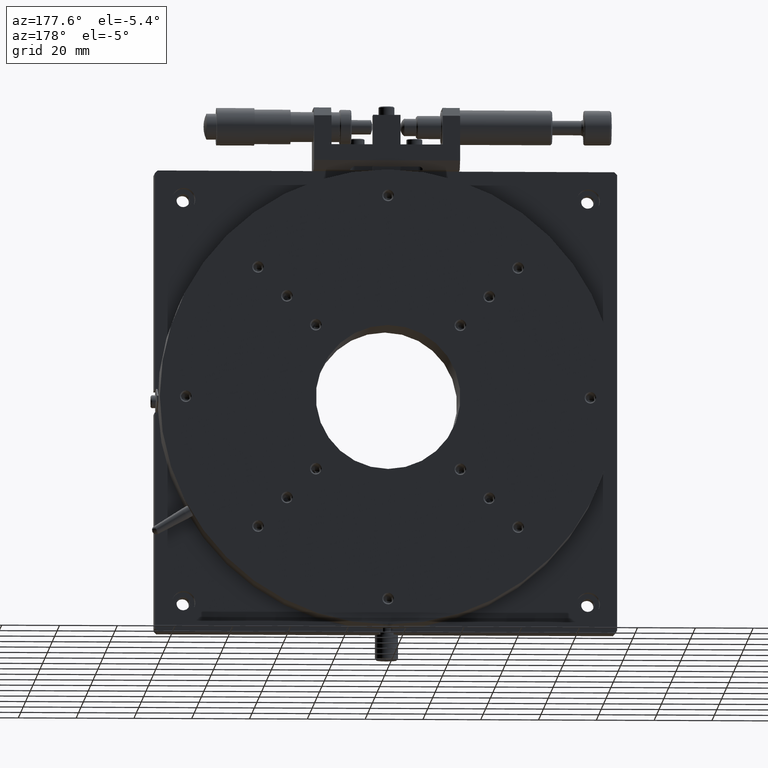
[diagram: clean part render]
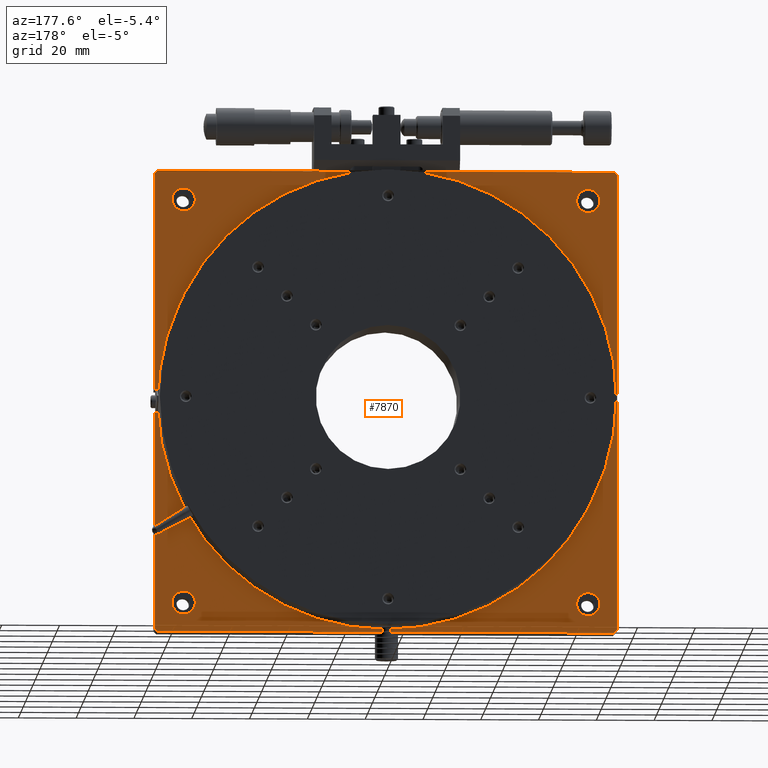
[diagram: same view with one face highlighted and labeled with its STEP entity id]
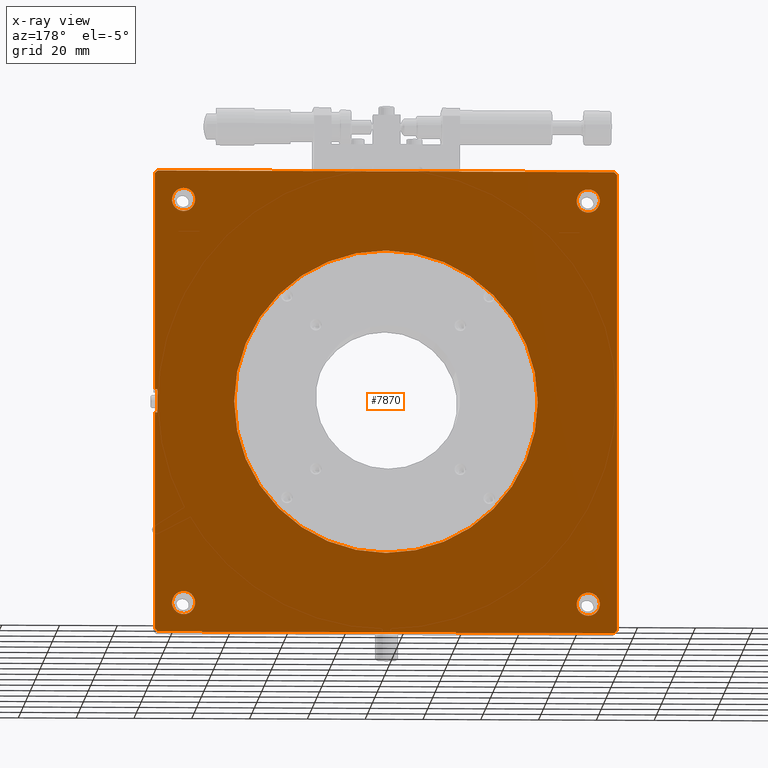
[diagram: x-ray of the same camera — body ghosted, the highlighted face saturated]
A machine part, auxiliary view. The second image highlights one B-rep face of the part: STEP entity #7870.
The next image is the same camera in x-ray: the body ghosted, the highlighted face saturated — about 0% of this face is hidden behind the body in this view.
In plain terms, the highlighted planar face has unit normal (0, 1, 0).
Its self-contained STEP definition (entity closure, byte-faithful):
#3 = AXIS2_PLACEMENT_3D ( 'NONE', #6759, #6772, #6773 ) ;
#17 = AXIS2_PLACEMENT_3D ( 'NONE', #6589, #6593, #6594 ) ;
#24 = AXIS2_PLACEMENT_3D ( 'NONE', #6735, #6763, #6776 ) ;
#29 = AXIS2_PLACEMENT_3D ( 'NONE', #6352, #6378, #6360 ) ;
#31 = AXIS2_PLACEMENT_3D ( 'NONE', #6734, #6765, #6774 ) ;
#36 = AXIS2_PLACEMENT_3D ( 'NONE', #6771, #6777, #6762 ) ;
#115 = EDGE_CURVE ( 'NONE', #9205, #9181, #5553, .T. ) ;
#116 = EDGE_CURVE ( 'NONE', #244, #9192, #5572, .T. ) ;
#136 = EDGE_CURVE ( 'NONE', #9194, #9211, #5527, .T. ) ;
#170 = EDGE_CURVE ( 'NONE', #9183, #246, #5602, .T. ) ;
#189 = VERTEX_POINT ( 'NONE', #6417 ) ;
#244 = VERTEX_POINT ( 'NONE', #6431 ) ;
#246 = VERTEX_POINT ( 'NONE', #6435 ) ;
#316 = CARTESIAN_POINT ( 'NONE',  ( 160.0000000000000000, 12.00000000000000000, 76.00000000000000000 ) ) ;
#321 = DIRECTION ( 'NONE',  ( -0.0000000000000000000, -0.0000000000000000000, 1.000000000000000000 ) ) ;
#336 = DIRECTION ( 'NONE',  ( 1.000000000000000000, -0.0000000000000000000, 0.0000000000000000000 ) ) ;
#339 = DIRECTION ( 'NONE',  ( -1.000000000000000000, -0.0000000000000000000, 0.0000000000000000000 ) ) ;
#344 = CARTESIAN_POINT ( 'NONE',  ( 0.0000000000000000000, 12.00000000000000000, 160.0000000000000000 ) ) ;
#345 = CARTESIAN_POINT ( 'NONE',  ( 1.000000000000000000, 12.00000000000000000, 160.0000000000000000 ) ) ;
#350 = DIRECTION ( 'NONE',  ( 1.000000000000000000, 0.0000000000000000000, -0.0000000000000000000 ) ) ;
#351 = CARTESIAN_POINT ( 'NONE',  ( 0.0000000000000000000, 12.00000000000000000, 1.000000000000000000 ) ) ;
#363 = CARTESIAN_POINT ( 'NONE',  ( 159.0000000000000000, 12.00000000000000000, 0.0000000000000000000 ) ) ;
#368 = CARTESIAN_POINT ( 'NONE',  ( 1.000000000000000000, 12.00000000000000000, 160.0000000000000000 ) ) ;
#379 = DIRECTION ( 'NONE',  ( 1.000000000000000000, -0.0000000000000000000, 0.0000000000000000000 ) ) ;
#387 = DIRECTION ( 'NONE',  ( -1.000000000000000000, -0.0000000000000000000, 0.0000000000000000000 ) ) ;
#405 = CARTESIAN_POINT ( 'NONE',  ( 159.0999999999999900, 12.00000000000000000, 0.0000000000000000000 ) ) ;
#412 = CARTESIAN_POINT ( 'NONE',  ( 159.0000000000000000, 12.00000000000000000, 160.0000000000000000 ) ) ;
#413 = CARTESIAN_POINT ( 'NONE',  ( 1.000000000000000000, 12.00000000000000000, 0.0000000000000000000 ) ) ;
#435 = DIRECTION ( 'NONE',  ( -0.0000000000000000000, 0.0000000000000000000, -1.000000000000000000 ) ) ;
#436 = DIRECTION ( 'NONE',  ( -0.7071067811865474600, 0.0000000000000000000, 0.7071067811865474600 ) ) ;
#437 = CARTESIAN_POINT ( 'NONE',  ( 10.00000000000000000, 12.00000000000000000, 6.000000000000000000 ) ) ;
#443 = CARTESIAN_POINT ( 'NONE',  ( 10.00000000000000000, 12.00000000000000000, 154.0000000000000000 ) ) ;
#447 = DIRECTION ( 'NONE',  ( 0.7071067811865474600, 0.0000000000000000000, -0.7071067811865474600 ) ) ;
#450 = CARTESIAN_POINT ( 'NONE',  ( 10.00000000000000000, 12.00000000000000000, 14.00000000000000000 ) ) ;
#481 = CARTESIAN_POINT ( 'NONE',  ( 150.0000000000000000, 12.00000000000000000, 6.000000000000000000 ) ) ;
#485 = CARTESIAN_POINT ( 'NONE',  ( 150.0000000000000000, 12.00000000000000000, 146.0000000000000000 ) ) ;
#486 = CARTESIAN_POINT ( 'NONE',  ( 150.0000000000000000, 12.00000000000000000, 154.0000000000000000 ) ) ;
#493 = CARTESIAN_POINT ( 'NONE',  ( 80.00000000000000000, 12.00000000000000000, 132.5000000000000000 ) ) ;
#500 = CARTESIAN_POINT ( 'NONE',  ( 80.00000000000000000, 12.00000000000000000, 27.50000000000000400 ) ) ;
#502 = DIRECTION ( 'NONE',  ( -0.0000000000000000000, -1.000000000000000000, -0.0000000000000000000 ) ) ;
#504 = DIRECTION ( 'NONE',  ( 0.0000000000000000000, 0.0000000000000000000, 1.000000000000000000 ) ) ;
#518 = CARTESIAN_POINT ( 'NONE',  ( 150.0000000000000000, 12.00000000000000000, 150.0000000000000000 ) ) ;
#2376 = CARTESIAN_POINT ( 'NONE',  ( 0.0000000000000000000, 12.00000000000000000, 76.00000000000000000 ) ) ;
#2956 = VERTEX_POINT ( 'NONE', #6477 ) ;
#2957 = VERTEX_POINT ( 'NONE', #6489 ) ;
#2958 = VERTEX_POINT ( 'NONE', #6483 ) ;
#2961 = VERTEX_POINT ( 'NONE', #6479 ) ;
#2976 = VERTEX_POINT ( 'NONE', #6509 ) ;
#2982 = VERTEX_POINT ( 'NONE', #6500 ) ;
#2986 = VERTEX_POINT ( 'NONE', #6480 ) ;
#2988 = VERTEX_POINT ( 'NONE', #6508 ) ;
#2991 = VERTEX_POINT ( 'NONE', #6484 ) ;
#3047 = VERTEX_POINT ( 'NONE', #6457 ) ;
#3119 = ORIENTED_EDGE ( 'NONE', *, *, #4078, .T. ) ;
#3123 = ORIENTED_EDGE ( 'NONE', *, *, #4012, .T. ) ;
#3127 = ORIENTED_EDGE ( 'NONE', *, *, #8167, .T. ) ;
#3128 = ORIENTED_EDGE ( 'NONE', *, *, #4076, .T. ) ;
#3130 = ORIENTED_EDGE ( 'NONE', *, *, #8192, .T. ) ;
#3132 = ORIENTED_EDGE ( 'NONE', *, *, #8220, .T. ) ;
#3133 = ORIENTED_EDGE ( 'NONE', *, *, #8213, .T. ) ;
#3137 = ORIENTED_EDGE ( 'NONE', *, *, #4077, .T. ) ;
#3138 = ORIENTED_EDGE ( 'NONE', *, *, #4028, .T. ) ;
#3143 = ORIENTED_EDGE ( 'NONE', *, *, #170, .T. ) ;
#3144 = ORIENTED_EDGE ( 'NONE', *, *, #4073, .T. ) ;
#3146 = ORIENTED_EDGE ( 'NONE', *, *, #4039, .F. ) ;
#3149 = ORIENTED_EDGE ( 'NONE', *, *, #8186, .F. ) ;
#3150 = ORIENTED_EDGE ( 'NONE', *, *, #116, .T. ) ;
#3152 = ORIENTED_EDGE ( 'NONE', *, *, #115, .T. ) ;
#3158 = ORIENTED_EDGE ( 'NONE', *, *, #4044, .T. ) ;
#3161 = ORIENTED_EDGE ( 'NONE', *, *, #4008, .T. ) ;
#3163 = ORIENTED_EDGE ( 'NONE', *, *, #8168, .T. ) ;
#3168 = ORIENTED_EDGE ( 'NONE', *, *, #8182, .T. ) ;
#3174 = ORIENTED_EDGE ( 'NONE', *, *, #8218, .T. ) ;
#3182 = ORIENTED_EDGE ( 'NONE', *, *, #4041, .T. ) ;
#3184 = ORIENTED_EDGE ( 'NONE', *, *, #136, .T. ) ;
#3186 = ORIENTED_EDGE ( 'NONE', *, *, #8181, .T. ) ;
#3187 = ORIENTED_EDGE ( 'NONE', *, *, #8200, .T. ) ;
#3189 = ORIENTED_EDGE ( 'NONE', *, *, #9247, .T. ) ;
#3193 = ORIENTED_EDGE ( 'NONE', *, *, #4027, .T. ) ;
#3561 = CARTESIAN_POINT ( 'NONE',  ( 54.75000000000000000, 12.00000000000000000, 160.0000000000000000 ) ) ;
#3626 = CARTESIAN_POINT ( 'NONE',  ( 159.5999999999999900, 12.00000000000000000, 84.00000000000000000 ) ) ;
#3648 = CARTESIAN_POINT ( 'NONE',  ( 159.5999999999999900, 12.00000000000000000, 76.00000000000000000 ) ) ;
#3651 = CARTESIAN_POINT ( 'NONE',  ( 105.2500000000000000, 12.00000000000000000, 160.0000000000000000 ) ) ;
#4008 = EDGE_CURVE ( 'NONE', #2988, #2976, #5668, .T. ) ;
#4012 = EDGE_CURVE ( 'NONE', #9181, #9205, #5637, .T. ) ;
#4027 = EDGE_CURVE ( 'NONE', #2961, #3047, #5669, .T. ) ;
#4028 = EDGE_CURVE ( 'NONE', #2982, #2986, #5666, .T. ) ;
#4039 = EDGE_CURVE ( 'NONE', #7703, #2976, #5677, .T. ) ;
#4041 = EDGE_CURVE ( 'NONE', #2957, #2961, #5645, .T. ) ;
#4044 = EDGE_CURVE ( 'NONE', #7703, #189, #5730, .T. ) ;
#4073 = EDGE_CURVE ( 'NONE', #9192, #244, #5714, .T. ) ;
#4076 = EDGE_CURVE ( 'NONE', #9211, #9194, #5768, .T. ) ;
#4077 = EDGE_CURVE ( 'NONE', #246, #9183, #5764, .T. ) ;
#4078 = EDGE_CURVE ( 'NONE', #9208, #9191, #5786, .T. ) ;
#4180 = EDGE_LOOP ( 'NONE', ( #3168, #3174, #3161, #3146, #3158, #3133, #3127, #3149, #3182, #3193, #3130, #3132, #3163, #3138, #3187, #3186 ) ) ;
#4186 = EDGE_LOOP ( 'NONE', ( #3150, #3144 ) ) ;
#4189 = EDGE_LOOP ( 'NONE', ( #3143, #3137 ) ) ;
#4205 = EDGE_LOOP ( 'NONE', ( #3184, #3128 ) ) ;
#4268 = AXIS2_PLACEMENT_3D ( 'NONE', #518, #502, #504 ) ;
#4916 = VERTEX_POINT ( 'NONE', #6131 ) ;
#5527 = CIRCLE ( 'NONE', #9232, 52.50000000000000000 ) ;
#5553 = CIRCLE ( 'NONE', #9250, 4.000000000000000000 ) ;
#5572 = CIRCLE ( 'NONE', #9277, 4.000000000000000000 ) ;
#5602 = CIRCLE ( 'NONE', #29, 4.000000000000003600 ) ;
#5637 = CIRCLE ( 'NONE', #17, 4.000000000000000000 ) ;
#5645 = LINE ( 'NONE', #6667, #5651 ) ;
#5647 = VECTOR ( 'NONE', #6677, 1000.000000000000000 ) ;
#5651 = VECTOR ( 'NONE', #6673, 1000.000000000000000 ) ;
#5652 = VECTOR ( 'NONE', #6620, 999.9999999999998900 ) ;
#5666 = LINE ( 'NONE', #6626, #5683 ) ;
#5668 = LINE ( 'NONE', #6615, #5687 ) ;
#5669 = LINE ( 'NONE', #6640, #5652 ) ;
#5677 = LINE ( 'NONE', #6690, #5647 ) ;
#5683 = VECTOR ( 'NONE', #6639, 999.9999999999998900 ) ;
#5687 = VECTOR ( 'NONE', #6578, 1000.000000000000000 ) ;
#5714 = CIRCLE ( 'NONE', #31, 4.000000000000000000 ) ;
#5716 = VECTOR ( 'NONE', #6678, 1000.000000000000000 ) ;
#5730 = LINE ( 'NONE', #6679, #5716 ) ;
#5764 = CIRCLE ( 'NONE', #3, 4.000000000000003600 ) ;
#5768 = CIRCLE ( 'NONE', #36, 52.50000000000000000 ) ;
#5786 = CIRCLE ( 'NONE', #24, 4.000000000000003600 ) ;
#6130 = DIRECTION ( 'NONE',  ( 1.000000000000000000, 0.0000000000000000000, -0.0000000000000000000 ) ) ;
#6131 = CARTESIAN_POINT ( 'NONE',  ( 159.0999999999999900, 12.00000000000000000, 76.00000000000000000 ) ) ;
#6142 = DIRECTION ( 'NONE',  ( 0.0000000000000000000, 1.000000000000000000, 0.0000000000000000000 ) ) ;
#6153 = PLANE ( 'NONE',  #8760 ) ;
#6154 = DIRECTION ( 'NONE',  ( 0.0000000000000000000, -0.0000000000000000000, 1.000000000000000000 ) ) ;
#6162 = CARTESIAN_POINT ( 'NONE',  ( 0.0000000000000000000, 12.00000000000000000, 0.0000000000000000000 ) ) ;
#6173 = CARTESIAN_POINT ( 'NONE',  ( 150.0000000000000000, 12.00000000000000000, 10.00000000000000000 ) ) ;
#6175 = DIRECTION ( 'NONE',  ( -0.0000000000000000000, -1.000000000000000000, -0.0000000000000000000 ) ) ;
#6179 = DIRECTION ( 'NONE',  ( 0.0000000000000000000, 0.0000000000000000000, 1.000000000000000000 ) ) ;
#6191 = DIRECTION ( 'NONE',  ( -0.0000000000000000000, -1.000000000000000000, -0.0000000000000000000 ) ) ;
#6192 = DIRECTION ( 'NONE',  ( 0.0000000000000000000, 0.0000000000000000000, 1.000000000000000000 ) ) ;
#6202 = CARTESIAN_POINT ( 'NONE',  ( 10.00000000000000000, 12.00000000000000000, 10.00000000000000000 ) ) ;
#6217 = CARTESIAN_POINT ( 'NONE',  ( 80.00000000000000000, 12.00000000000000000, 80.00000000000000000 ) ) ;
#6218 = DIRECTION ( 'NONE',  ( 0.0000000000000000000, -1.000000000000000000, 0.0000000000000000000 ) ) ;
#6221 = DIRECTION ( 'NONE',  ( 0.0000000000000000000, 0.0000000000000000000, -1.000000000000000000 ) ) ;
#6352 = CARTESIAN_POINT ( 'NONE',  ( 10.00000000000000000, 12.00000000000000000, 150.0000000000000000 ) ) ;
#6360 = DIRECTION ( 'NONE',  ( 0.0000000000000000000, 0.0000000000000000000, 1.000000000000000000 ) ) ;
#6378 = DIRECTION ( 'NONE',  ( -0.0000000000000000000, -1.000000000000000000, -0.0000000000000000000 ) ) ;
#6417 = CARTESIAN_POINT ( 'NONE',  ( 159.0999999999999900, 12.00000000000000000, 84.00000000000000000 ) ) ;
#6431 = CARTESIAN_POINT ( 'NONE',  ( 150.0000000000000000, 12.00000000000000000, 14.00000000000000000 ) ) ;
#6435 = CARTESIAN_POINT ( 'NONE',  ( 10.00000000000000000, 12.00000000000000000, 146.0000000000000000 ) ) ;
#6457 = CARTESIAN_POINT ( 'NONE',  ( 159.0000000000000000, 12.00000000000000000, 9.486769009248163800E-016 ) ) ;
#6477 = CARTESIAN_POINT ( 'NONE',  ( 1.000000000000000000, 12.00000000000000000, 5.421010862427523400E-017 ) ) ;
#6479 = CARTESIAN_POINT ( 'NONE',  ( 160.0000000000000000, 12.00000000000000000, 1.000000000000000200 ) ) ;
#6480 = CARTESIAN_POINT ( 'NONE',  ( 0.9999999999999997800, 12.00000000000000000, 160.0000000000000000 ) ) ;
#6483 = CARTESIAN_POINT ( 'NONE',  ( 159.0000000000000300, 12.00000000000000000, 159.9999999999999700 ) ) ;
#6484 = CARTESIAN_POINT ( 'NONE',  ( 0.0000000000000000000, 12.00000000000000000, 1.000000000000000000 ) ) ;
#6489 = CARTESIAN_POINT ( 'NONE',  ( 160.0000000000000000, 12.00000000000000000, 76.00000000000000000 ) ) ;
#6500 = CARTESIAN_POINT ( 'NONE',  ( 0.0000000000000000000, 12.00000000000000000, 159.0000000000000000 ) ) ;
#6508 = CARTESIAN_POINT ( 'NONE',  ( 159.9999999999999700, 12.00000000000000000, 159.0000000000000300 ) ) ;
#6509 = CARTESIAN_POINT ( 'NONE',  ( 160.0000000000000000, 12.00000000000000000, 84.00000000000000000 ) ) ;
#6578 = DIRECTION ( 'NONE',  ( -0.0000000000000000000, -0.0000000000000000000, -1.000000000000000000 ) ) ;
#6589 = CARTESIAN_POINT ( 'NONE',  ( 10.00000000000000000, 12.00000000000000000, 10.00000000000000000 ) ) ;
#6593 = DIRECTION ( 'NONE',  ( -0.0000000000000000000, -1.000000000000000000, -0.0000000000000000000 ) ) ;
#6594 = DIRECTION ( 'NONE',  ( 0.0000000000000000000, 0.0000000000000000000, 1.000000000000000000 ) ) ;
#6615 = CARTESIAN_POINT ( 'NONE',  ( 160.0000000000000000, 12.00000000000000000, 159.0000000000000000 ) ) ;
#6620 = DIRECTION ( 'NONE',  ( -0.7071067811865479100, 0.0000000000000000000, -0.7071067811865472400 ) ) ;
#6626 = CARTESIAN_POINT ( 'NONE',  ( 0.0000000000000000000, 12.00000000000000000, 159.0000000000000000 ) ) ;
#6639 = DIRECTION ( 'NONE',  ( 0.7071067811865472400, 0.0000000000000000000, 0.7071067811865479100 ) ) ;
#6640 = CARTESIAN_POINT ( 'NONE',  ( 160.0000000000000000, 12.00000000000000000, 1.000000000000000000 ) ) ;
#6667 = CARTESIAN_POINT ( 'NONE',  ( 160.0000000000000000, 12.00000000000000000, 159.0000000000000000 ) ) ;
#6673 = DIRECTION ( 'NONE',  ( -0.0000000000000000000, -0.0000000000000000000, -1.000000000000000000 ) ) ;
#6677 = DIRECTION ( 'NONE',  ( 1.000000000000000000, -0.0000000000000000000, 0.0000000000000000000 ) ) ;
#6678 = DIRECTION ( 'NONE',  ( -1.000000000000000000, -0.0000000000000000000, 0.0000000000000000000 ) ) ;
#6679 = CARTESIAN_POINT ( 'NONE',  ( 0.0000000000000000000, 12.00000000000000000, 84.00000000000000000 ) ) ;
#6690 = CARTESIAN_POINT ( 'NONE',  ( 160.0000000000000000, 12.00000000000000000, 84.00000000000000000 ) ) ;
#6734 = CARTESIAN_POINT ( 'NONE',  ( 150.0000000000000000, 12.00000000000000000, 10.00000000000000000 ) ) ;
#6735 = CARTESIAN_POINT ( 'NONE',  ( 150.0000000000000000, 12.00000000000000000, 150.0000000000000000 ) ) ;
#6759 = CARTESIAN_POINT ( 'NONE',  ( 10.00000000000000000, 12.00000000000000000, 150.0000000000000000 ) ) ;
#6762 = DIRECTION ( 'NONE',  ( 0.0000000000000000000, 0.0000000000000000000, -1.000000000000000000 ) ) ;
#6763 = DIRECTION ( 'NONE',  ( -0.0000000000000000000, -1.000000000000000000, -0.0000000000000000000 ) ) ;
#6765 = DIRECTION ( 'NONE',  ( -0.0000000000000000000, -1.000000000000000000, -0.0000000000000000000 ) ) ;
#6771 = CARTESIAN_POINT ( 'NONE',  ( 80.00000000000000000, 12.00000000000000000, 80.00000000000000000 ) ) ;
#6772 = DIRECTION ( 'NONE',  ( -0.0000000000000000000, -1.000000000000000000, -0.0000000000000000000 ) ) ;
#6773 = DIRECTION ( 'NONE',  ( 0.0000000000000000000, 0.0000000000000000000, 1.000000000000000000 ) ) ;
#6774 = DIRECTION ( 'NONE',  ( 0.0000000000000000000, 0.0000000000000000000, 1.000000000000000000 ) ) ;
#6776 = DIRECTION ( 'NONE',  ( 0.0000000000000000000, 0.0000000000000000000, 1.000000000000000000 ) ) ;
#6777 = DIRECTION ( 'NONE',  ( 0.0000000000000000000, -1.000000000000000000, 0.0000000000000000000 ) ) ;
#7634 = EDGE_LOOP ( 'NONE', ( #3152, #3123 ) ) ;
#7669 = EDGE_LOOP ( 'NONE', ( #3189, #3119 ) ) ;
#7688 = VERTEX_POINT ( 'NONE', #3561 ) ;
#7693 = VERTEX_POINT ( 'NONE', #3648 ) ;
#7694 = VERTEX_POINT ( 'NONE', #3651 ) ;
#7703 = VERTEX_POINT ( 'NONE', #3626 ) ;
#7870 = ADVANCED_FACE ( 'NONE', ( #8272, #8275, #8286, #8269, #8302, #8278 ), #6153, .T. ) ;
#8167 = EDGE_CURVE ( 'NONE', #4916, #7693, #8622, .T. ) ;
#8168 = EDGE_CURVE ( 'NONE', #2991, #2982, #8587, .T. ) ;
#8181 = EDGE_CURVE ( 'NONE', #7688, #7694, #8650, .T. ) ;
#8182 = EDGE_CURVE ( 'NONE', #7694, #2958, #8664, .T. ) ;
#8186 = EDGE_CURVE ( 'NONE', #2957, #7693, #8661, .T. ) ;
#8192 = EDGE_CURVE ( 'NONE', #3047, #2956, #8709, .T. ) ;
#8200 = EDGE_CURVE ( 'NONE', #2986, #7688, #8685, .T. ) ;
#8213 = EDGE_CURVE ( 'NONE', #189, #4916, #8751, .T. ) ;
#8218 = EDGE_CURVE ( 'NONE', #2958, #2988, #8745, .T. ) ;
#8220 = EDGE_CURVE ( 'NONE', #2956, #2991, #8710, .T. ) ;
#8252 = CIRCLE ( 'NONE', #4268, 4.000000000000003600 ) ;
#8269 = FACE_BOUND ( 'NONE', #4189, .T. ) ;
#8272 = FACE_OUTER_BOUND ( 'NONE', #4180, .T. ) ;
#8275 = FACE_BOUND ( 'NONE', #7634, .T. ) ;
#8278 = FACE_BOUND ( 'NONE', #4205, .T. ) ;
#8286 = FACE_BOUND ( 'NONE', #7669, .T. ) ;
#8302 = FACE_BOUND ( 'NONE', #4186, .T. ) ;
#8587 = LINE ( 'NONE', #351, #8632 ) ;
#8622 = LINE ( 'NONE', #2376, #8625 ) ;
#8625 = VECTOR ( 'NONE', #6130, 1000.000000000000000 ) ;
#8632 = VECTOR ( 'NONE', #321, 1000.000000000000000 ) ;
#8650 = LINE ( 'NONE', #344, #8657 ) ;
#8657 = VECTOR ( 'NONE', #350, 1000.000000000000000 ) ;
#8661 = LINE ( 'NONE', #316, #8681 ) ;
#8664 = LINE ( 'NONE', #345, #8665 ) ;
#8665 = VECTOR ( 'NONE', #336, 1000.000000000000000 ) ;
#8681 = VECTOR ( 'NONE', #339, 1000.000000000000000 ) ;
#8685 = LINE ( 'NONE', #368, #8686 ) ;
#8686 = VECTOR ( 'NONE', #379, 1000.000000000000000 ) ;
#8701 = VECTOR ( 'NONE', #387, 1000.000000000000000 ) ;
#8709 = LINE ( 'NONE', #363, #8701 ) ;
#8710 = LINE ( 'NONE', #413, #8712 ) ;
#8712 = VECTOR ( 'NONE', #436, 1000.000000000000100 ) ;
#8744 = VECTOR ( 'NONE', #435, 1000.000000000000000 ) ;
#8745 = LINE ( 'NONE', #412, #8747 ) ;
#8747 = VECTOR ( 'NONE', #447, 1000.000000000000100 ) ;
#8751 = LINE ( 'NONE', #405, #8744 ) ;
#8760 = AXIS2_PLACEMENT_3D ( 'NONE', #6162, #6142, #6154 ) ;
#9181 = VERTEX_POINT ( 'NONE', #437 ) ;
#9183 = VERTEX_POINT ( 'NONE', #443 ) ;
#9191 = VERTEX_POINT ( 'NONE', #486 ) ;
#9192 = VERTEX_POINT ( 'NONE', #481 ) ;
#9194 = VERTEX_POINT ( 'NONE', #500 ) ;
#9205 = VERTEX_POINT ( 'NONE', #450 ) ;
#9208 = VERTEX_POINT ( 'NONE', #485 ) ;
#9211 = VERTEX_POINT ( 'NONE', #493 ) ;
#9232 = AXIS2_PLACEMENT_3D ( 'NONE', #6217, #6218, #6221 ) ;
#9247 = EDGE_CURVE ( 'NONE', #9191, #9208, #8252, .T. ) ;
#9250 = AXIS2_PLACEMENT_3D ( 'NONE', #6202, #6175, #6192 ) ;
#9277 = AXIS2_PLACEMENT_3D ( 'NONE', #6173, #6191, #6179 ) ;